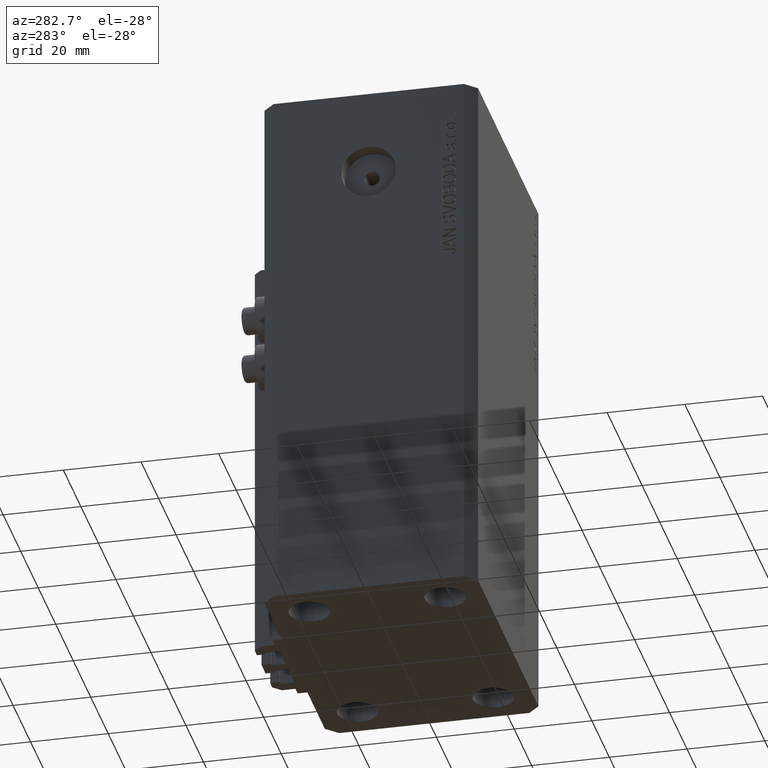
[diagram: clean part render]
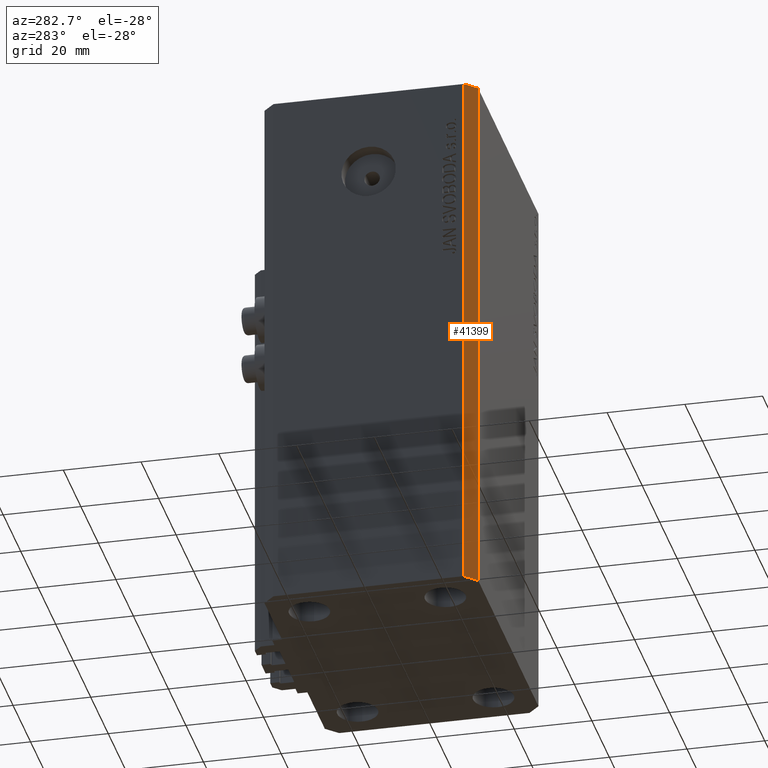
[diagram: same view with one face highlighted and labeled with its STEP entity id]
A machine part, auxiliary view. The second image highlights one B-rep face of the part: STEP entity #41399.
In plain terms, the highlighted planar face has unit normal (-0.7071, -0.7071, 0).
Its self-contained STEP definition (entity closure, byte-faithful):
#42 = CARTESIAN_POINT ( 'NONE',  ( -37.49999999999999289, -24.50000000000000000, -140.0000000000000000 ) ) ;
#522 = DIRECTION ( 'NONE',  ( 0.7071067811865483499, -0.7071067811865466846, 0.000000000000000000 ) ) ;
#2114 = ORIENTED_EDGE ( 'NONE', *, *, #34049, .F. ) ;
#2757 = DIRECTION ( 'NONE',  ( 0.7071067811865483499, -0.7071067811865466846, 0.000000000000000000 ) ) ;
#3613 = DIRECTION ( 'NONE',  ( -0.7071067811865466846, -0.7071067811865483499, 0.000000000000000000 ) ) ;
#6102 = VERTEX_POINT ( 'NONE', #44140 ) ;
#7812 = VECTOR ( 'NONE', #27142, 1000.000000000000000 ) ;
#8075 = CARTESIAN_POINT ( 'NONE',  ( -37.49999999999999289, -24.50000000000000000, -140.0000000000000000 ) ) ;
#8676 = ORIENTED_EDGE ( 'NONE', *, *, #24917, .F. ) ;
#9161 = LINE ( 'NONE', #16095, #19793 ) ;
#9399 = DIRECTION ( 'NONE',  ( 0.000000000000000000, 0.000000000000000000, 1.000000000000000000 ) ) ;
#9413 = DIRECTION ( 'NONE',  ( 0.000000000000000000, 0.000000000000000000, 1.000000000000000000 ) ) ;
#16095 = CARTESIAN_POINT ( 'NONE',  ( -37.49999999999999289, -24.50000000000000000, -140.0000000000000000 ) ) ;
#16350 = EDGE_CURVE ( 'NONE', #44725, #6102, #20936, .T. ) ;
#19793 = VECTOR ( 'NONE', #9399, 1000.000000000000000 ) ;
#20936 = LINE ( 'NONE', #35485, #42038 ) ;
#21273 = VERTEX_POINT ( 'NONE', #47024 ) ;
#24917 = EDGE_CURVE ( 'NONE', #44725, #21273, #9161, .T. ) ;
#26316 = AXIS2_PLACEMENT_3D ( 'NONE', #42, #3613, #522 ) ;
#27142 = DIRECTION ( 'NONE',  ( 0.7071067811865483499, -0.7071067811865466846, 0.000000000000000000 ) ) ;
#27578 = LINE ( 'NONE', #42119, #37712 ) ;
#29589 = VERTEX_POINT ( 'NONE', #33122 ) ;
#30247 = CARTESIAN_POINT ( 'NONE',  ( -37.49999999999999289, -24.50000000000000000, 0.000000000000000000 ) ) ;
#33122 = CARTESIAN_POINT ( 'NONE',  ( -34.49999999999998579, -27.49999999999999645, 0.000000000000000000 ) ) ;
#33588 = LINE ( 'NONE', #30247, #7812 ) ;
#34049 = EDGE_CURVE ( 'NONE', #21273, #29589, #33588, .T. ) ;
#35485 = CARTESIAN_POINT ( 'NONE',  ( -37.49999999999999289, -24.50000000000000000, -140.0000000000000000 ) ) ;
#37712 = VECTOR ( 'NONE', #9413, 1000.000000000000000 ) ;
#38628 = EDGE_LOOP ( 'NONE', ( #2114, #8676, #40142, #44277 ) ) ;
#39212 = EDGE_CURVE ( 'NONE', #6102, #29589, #27578, .T. ) ;
#40142 = ORIENTED_EDGE ( 'NONE', *, *, #16350, .T. ) ;
#40610 = FACE_OUTER_BOUND ( 'NONE', #38628, .T. ) ;
#41399 = ADVANCED_FACE ( 'NONE', ( #40610 ), #44433, .T. ) ;
#42038 = VECTOR ( 'NONE', #2757, 1000.000000000000000 ) ;
#42119 = CARTESIAN_POINT ( 'NONE',  ( -34.49999999999998579, -27.49999999999999645, -140.0000000000000000 ) ) ;
#44140 = CARTESIAN_POINT ( 'NONE',  ( -34.49999999999998579, -27.49999999999999645, -140.0000000000000000 ) ) ;
#44277 = ORIENTED_EDGE ( 'NONE', *, *, #39212, .T. ) ;
#44433 = PLANE ( 'NONE',  #26316 ) ;
#44725 = VERTEX_POINT ( 'NONE', #8075 ) ;
#47024 = CARTESIAN_POINT ( 'NONE',  ( -37.49999999999999289, -24.50000000000000000, 0.000000000000000000 ) ) ;